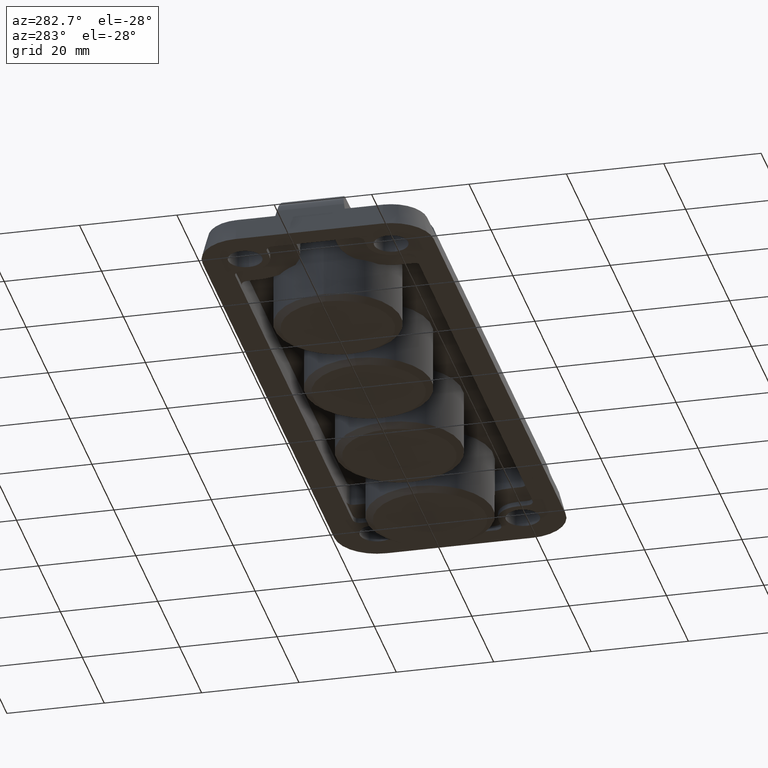
[diagram: clean part render]
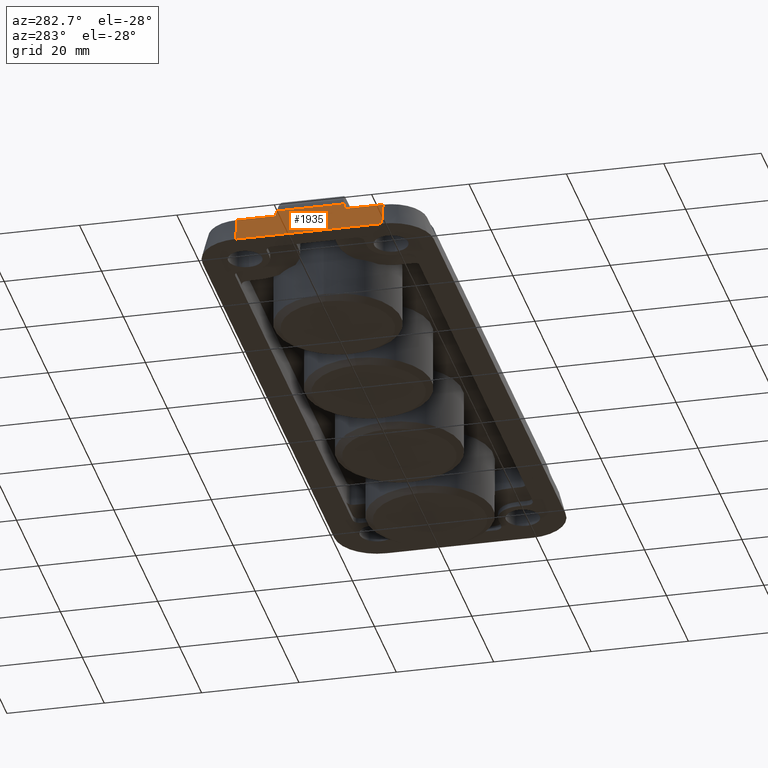
[diagram: same view with one face highlighted and labeled with its STEP entity id]
A machine part, auxiliary view. The second image highlights one B-rep face of the part: STEP entity #1935.
In plain terms, the highlighted planar face has unit normal (-0.9659, 0, 0.2588).
Its self-contained STEP definition (entity closure, byte-faithful):
#63 = DIRECTION ( 'NONE',  ( -0.0000000000000000000, 1.000000000000000000, -0.0000000000000000000 ) ) ;
#116 = EDGE_CURVE ( 'NONE', #2825, #3542, #1239, .T. ) ;
#167 = VECTOR ( 'NONE', #2783, 1000.000000000000000 ) ;
#192 = CARTESIAN_POINT ( 'NONE',  ( -67.76413340434290000, 7.364509202074650300, 3.679304224477359500 ) ) ;
#575 = VECTOR ( 'NONE', #1773, 1000.000000000000100 ) ;
#597 = CARTESIAN_POINT ( 'NONE',  ( -69.04930487791631300, -8.210230749401599600, -1.117021011336824000 ) ) ;
#608 = ORIENTED_EDGE ( 'NONE', *, *, #3188, .T. ) ;
#725 = LINE ( 'NONE', #1947, #2059 ) ;
#916 = DIRECTION ( 'NONE',  ( -0.0000000000000000000, 1.000000000000000000, -0.0000000000000000000 ) ) ;
#917 = FACE_OUTER_BOUND ( 'NONE', #3456, .T. ) ;
#983 = PLANE ( 'NONE',  #3708 ) ;
#985 = LINE ( 'NONE', #597, #1979 ) ;
#1126 = CARTESIAN_POINT ( 'NONE',  ( -68.75000000000002800, -14.99999999999998000, 2.602085213965216200E-015 ) ) ;
#1139 = VECTOR ( 'NONE', #3880, 1000.000000000000000 ) ;
#1174 = VERTEX_POINT ( 'NONE', #4015 ) ;
#1177 = EDGE_CURVE ( 'NONE', #1662, #3704, #3433, .T. ) ;
#1229 = CARTESIAN_POINT ( 'NONE',  ( -68.75000000000001400, 14.99999999999999600, 0.0000000000000000000 ) ) ;
#1239 = LINE ( 'NONE', #1839, #167 ) ;
#1365 = ORIENTED_EDGE ( 'NONE', *, *, #1464, .T. ) ;
#1414 = LINE ( 'NONE', #1126, #575 ) ;
#1464 = EDGE_CURVE ( 'NONE', #2180, #1707, #2074, .T. ) ;
#1547 = CARTESIAN_POINT ( 'NONE',  ( -67.41025403784439600, -14.99999999999997900, 5.000000000000000000 ) ) ;
#1556 = VECTOR ( 'NONE', #3290, 1000.000000000000100 ) ;
#1614 = CARTESIAN_POINT ( 'NONE',  ( -68.75000000000001400, 14.99999999999999600, 0.0000000000000000000 ) ) ;
#1662 = VERTEX_POINT ( 'NONE', #3971 ) ;
#1694 = CARTESIAN_POINT ( 'NONE',  ( -68.75000000000001400, -14.99999999999997900, 0.0000000000000000000 ) ) ;
#1707 = VERTEX_POINT ( 'NONE', #3627 ) ;
#1754 = ORIENTED_EDGE ( 'NONE', *, *, #1833, .T. ) ;
#1773 = DIRECTION ( 'NONE',  ( -0.2588190451025212900, -5.131193983648487900E-017, -0.9659258262890680900 ) ) ;
#1833 = EDGE_CURVE ( 'NONE', #3704, #2180, #3277, .T. ) ;
#1839 = CARTESIAN_POINT ( 'NONE',  ( -67.41025403784439600, -14.99999999999997900, 5.000000000000000000 ) ) ;
#1904 = LINE ( 'NONE', #192, #1556 ) ;
#1935 = ADVANCED_FACE ( 'NONE', ( #917 ), #983, .T. ) ;
#1947 = CARTESIAN_POINT ( 'NONE',  ( -67.06350226723932900, -14.99999999999997900, 6.294095225512608100 ) ) ;
#1979 = VECTOR ( 'NONE', #3983, 1000.000000000000100 ) ;
#1987 = CARTESIAN_POINT ( 'NONE',  ( -67.06350226723934300, 6.903450999678439000, 6.294095225512611700 ) ) ;
#2059 = VECTOR ( 'NONE', #63, 1000.000000000000000 ) ;
#2074 = LINE ( 'NONE', #1694, #1139 ) ;
#2128 = DIRECTION ( 'NONE',  ( -0.2588190451025212900, -0.0000000000000000000, -0.9659258262890680900 ) ) ;
#2180 = VERTEX_POINT ( 'NONE', #1614 ) ;
#2198 = CARTESIAN_POINT ( 'NONE',  ( -67.41025403784439600, 14.99999999999999600, 5.000000000000000000 ) ) ;
#2426 = EDGE_CURVE ( 'NONE', #3542, #1174, #985, .T. ) ;
#2429 = ORIENTED_EDGE ( 'NONE', *, *, #116, .T. ) ;
#2526 = ORIENTED_EDGE ( 'NONE', *, *, #1177, .T. ) ;
#2562 = CARTESIAN_POINT ( 'NONE',  ( -67.41025403784439600, -7.131634903542334300, 5.000000000000000900 ) ) ;
#2682 = ORIENTED_EDGE ( 'NONE', *, *, #2426, .T. ) ;
#2783 = DIRECTION ( 'NONE',  ( -0.0000000000000000000, 1.000000000000000000, -0.0000000000000000000 ) ) ;
#2825 = VERTEX_POINT ( 'NONE', #3882 ) ;
#2851 = VECTOR ( 'NONE', #916, 1000.000000000000000 ) ;
#2864 = CARTESIAN_POINT ( 'NONE',  ( -68.75000000000001400, -14.99999999999997900, 0.0000000000000000000 ) ) ;
#2995 = EDGE_CURVE ( 'NONE', #1174, #3064, #725, .T. ) ;
#3064 = VERTEX_POINT ( 'NONE', #1987 ) ;
#3188 = EDGE_CURVE ( 'NONE', #3064, #1662, #1904, .T. ) ;
#3198 = EDGE_CURVE ( 'NONE', #2825, #1707, #1414, .T. ) ;
#3277 = LINE ( 'NONE', #1229, #3614 ) ;
#3290 = DIRECTION ( 'NONE',  ( -0.2551448178209430000, 0.1679009179374286700, -0.9522134233956621700 ) ) ;
#3433 = LINE ( 'NONE', #1547, #2851 ) ;
#3456 = EDGE_LOOP ( 'NONE', ( #2682, #3814, #608, #2526, #1754, #1365, #4039, #2429 ) ) ;
#3467 = DIRECTION ( 'NONE',  ( -0.9659258262890680900, 0.0000000000000000000, 0.2588190451025213500 ) ) ;
#3542 = VERTEX_POINT ( 'NONE', #2562 ) ;
#3614 = VECTOR ( 'NONE', #2128, 1000.000000000000100 ) ;
#3627 = CARTESIAN_POINT ( 'NONE',  ( -68.75000000000001400, -14.99999999999997900, 0.0000000000000000000 ) ) ;
#3704 = VERTEX_POINT ( 'NONE', #2198 ) ;
#3708 = AXIS2_PLACEMENT_3D ( 'NONE', #2864, #3467, #3778 ) ;
#3778 = DIRECTION ( 'NONE',  ( 0.2588190451025213500, 0.0000000000000000000, 0.9659258262890680900 ) ) ;
#3814 = ORIENTED_EDGE ( 'NONE', *, *, #2995, .T. ) ;
#3880 = DIRECTION ( 'NONE',  ( -0.0000000000000000000, -1.000000000000000000, -0.0000000000000000000 ) ) ;
#3882 = CARTESIAN_POINT ( 'NONE',  ( -67.41025403784441000, -14.99999999999998000, 5.000000000000000000 ) ) ;
#3971 = CARTESIAN_POINT ( 'NONE',  ( -67.41025403784441000, 7.131634903542318300, 5.000000000000000000 ) ) ;
#3983 = DIRECTION ( 'NONE',  ( 0.2551448178209430000, 0.1679009179374287800, 0.9522134233956621700 ) ) ;
#4015 = CARTESIAN_POINT ( 'NONE',  ( -67.06350226723932900, -6.903450999678455000, 6.294095225512609900 ) ) ;
#4039 = ORIENTED_EDGE ( 'NONE', *, *, #3198, .F. ) ;